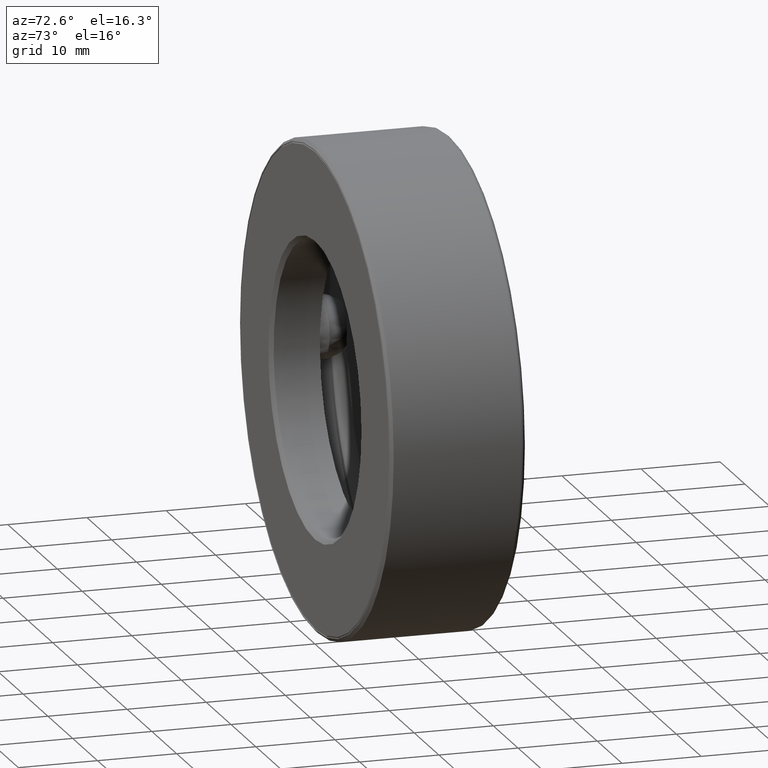
[diagram: clean part render]
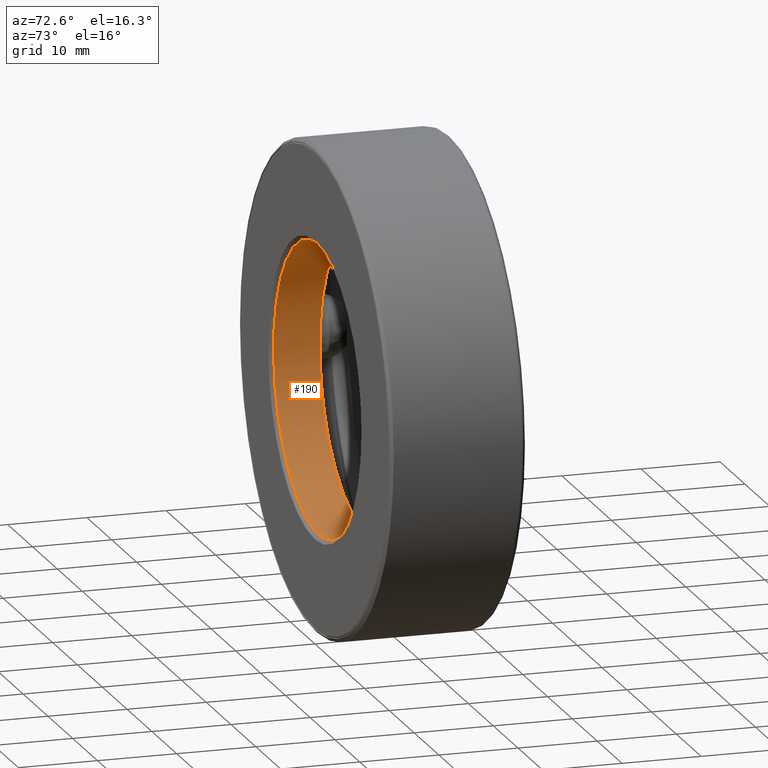
[diagram: same view with one face highlighted and labeled with its STEP entity id]
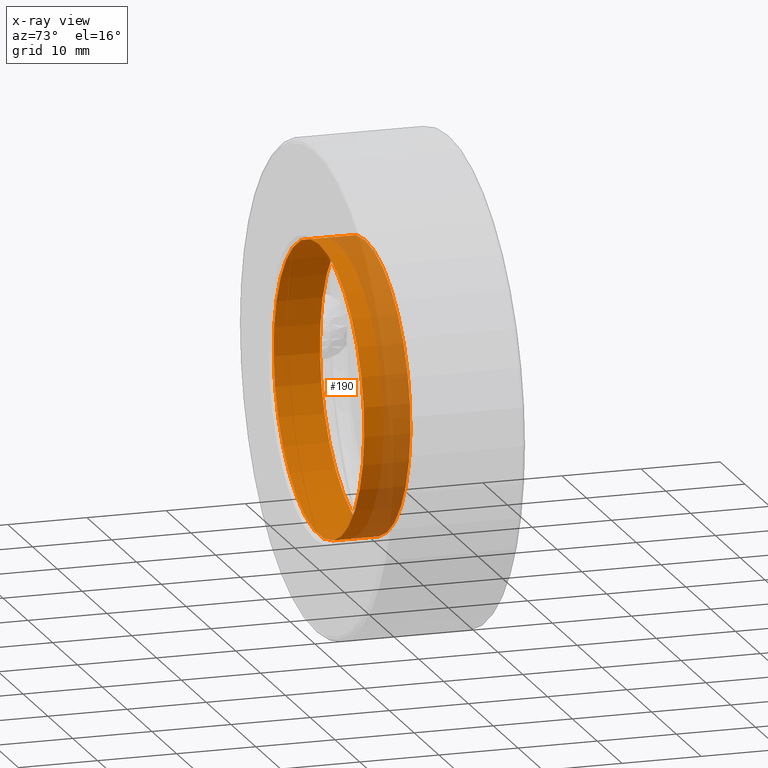
[diagram: x-ray of the same camera — body ghosted, the highlighted face saturated]
A machine part, auxiliary view. The second image highlights one B-rep face of the part: STEP entity #190.
The next image is the same camera in x-ray: the body ghosted, the highlighted face saturated — about 30% of this face is hidden behind the body in this view.
In plain terms, the highlighted cylindrical surface (bore or boss wall) has radius 18.2562 mm, axis along (-0, 1, -0).
Its self-contained STEP definition (entity closure, byte-faithful):
#24 = CARTESIAN_POINT ( 'NONE',  ( 0.0000000000000000000, 0.2500000000000001100, 0.0000000000000000000 ) ) ;
#97 = DIRECTION ( 'NONE',  ( 0.0000000000000000000, 0.0000000000000000000, 1.000000000000000000 ) ) ;
#109 = ORIENTED_EDGE ( 'NONE', *, *, #215, .T. ) ;
#117 = CIRCLE ( 'NONE', #291, 0.7187500000000000000 ) ;
#120 = DIRECTION ( 'NONE',  ( -0.0000000000000000000, 1.000000000000000000, -0.0000000000000000000 ) ) ;
#126 = AXIS2_PLACEMENT_3D ( 'NONE', #295, #120, #487 ) ;
#148 = CARTESIAN_POINT ( 'NONE',  ( 0.0000000000000000000, 0.02000000000000005900, 0.0000000000000000000 ) ) ;
#169 = DIRECTION ( 'NONE',  ( 0.0000000000000000000, 0.0000000000000000000, 1.000000000000000000 ) ) ;
#190 = ADVANCED_FACE ( 'NONE', ( #412, #501 ), #367, .F. ) ;
#192 = VERTEX_POINT ( 'NONE', #577 ) ;
#199 = CARTESIAN_POINT ( 'NONE',  ( 0.0000000000000000000, 0.2500000000000001100, 0.7187500000000000000 ) ) ;
#206 = DIRECTION ( 'NONE',  ( -0.0000000000000000000, 1.000000000000000000, -0.0000000000000000000 ) ) ;
#209 = EDGE_LOOP ( 'NONE', ( #109 ) ) ;
#215 = EDGE_CURVE ( 'NONE', #463, #463, #117, .T. ) ;
#221 = AXIS2_PLACEMENT_3D ( 'NONE', #148, #377, #97 ) ;
#222 = CIRCLE ( 'NONE', #221, 0.7187499999999997800 ) ;
#239 = ORIENTED_EDGE ( 'NONE', *, *, #511, .F. ) ;
#291 = AXIS2_PLACEMENT_3D ( 'NONE', #24, #206, #169 ) ;
#295 = CARTESIAN_POINT ( 'NONE',  ( 0.0000000000000000000, 0.0000000000000000000, 0.0000000000000000000 ) ) ;
#367 = CYLINDRICAL_SURFACE ( 'NONE', #126, 0.7187499999999997800 ) ;
#377 = DIRECTION ( 'NONE',  ( -0.0000000000000000000, 1.000000000000000000, -0.0000000000000000000 ) ) ;
#412 = FACE_OUTER_BOUND ( 'NONE', #520, .T. ) ;
#463 = VERTEX_POINT ( 'NONE', #199 ) ;
#487 = DIRECTION ( 'NONE',  ( 0.0000000000000000000, 0.0000000000000000000, 1.000000000000000000 ) ) ;
#501 = FACE_OUTER_BOUND ( 'NONE', #209, .T. ) ;
#511 = EDGE_CURVE ( 'NONE', #192, #192, #222, .T. ) ;
#520 = EDGE_LOOP ( 'NONE', ( #239 ) ) ;
#577 = CARTESIAN_POINT ( 'NONE',  ( 0.0000000000000000000, 0.02000000000000005900, 0.7187499999999997800 ) ) ;